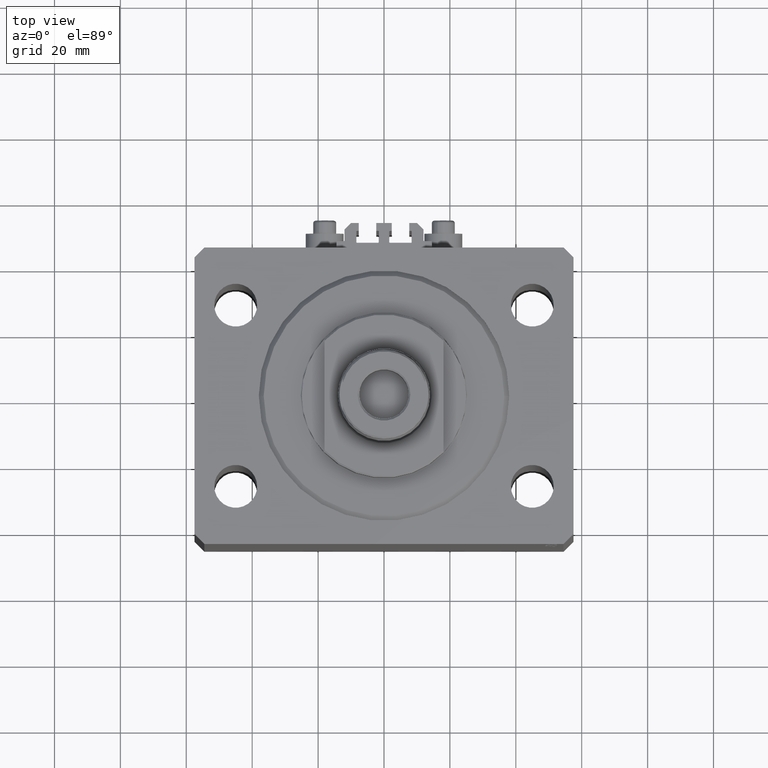
[diagram: clean part render]
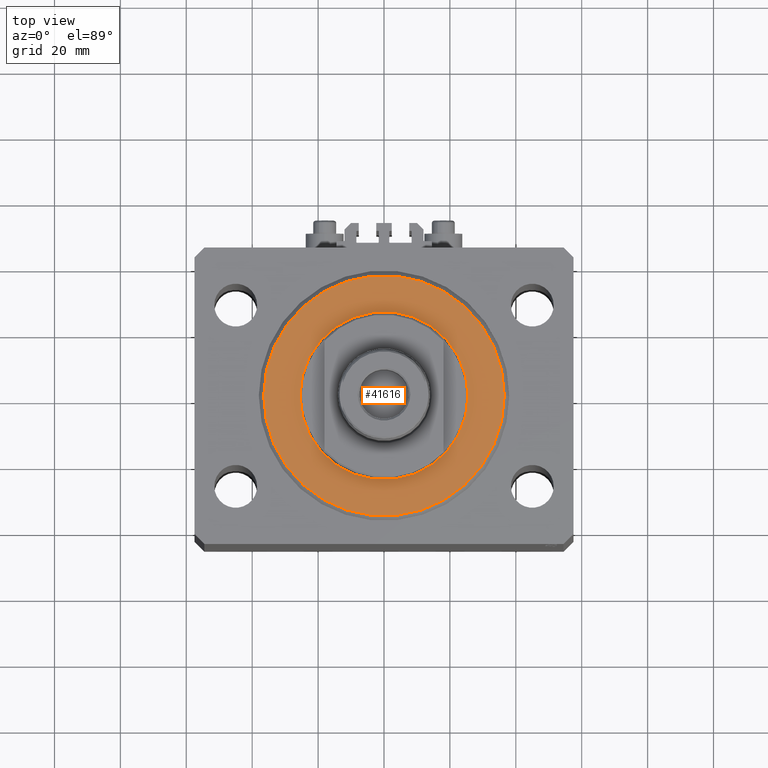
[diagram: same view with one face highlighted and labeled with its STEP entity id]
A machine part, top view. The second image highlights one B-rep face of the part: STEP entity #41616.
In plain terms, the highlighted planar face has unit normal (0, 0, -1).
Its self-contained STEP definition (entity closure, byte-faithful):
#3 = VERTEX_POINT ( 'NONE', #17731 ) ;
#3398 = DIRECTION ( 'NONE',  ( 1.000000000000000000, 0.000000000000000000, -0.000000000000000000 ) ) ;
#4016 = ORIENTED_EDGE ( 'NONE', *, *, #45743, .T. ) ;
#6656 = DIRECTION ( 'NONE',  ( -0.000000000000000000, -0.000000000000000000, -1.000000000000000000 ) ) ;
#6702 = AXIS2_PLACEMENT_3D ( 'NONE', #16840, #6656, #21132 ) ;
#6736 = FACE_OUTER_BOUND ( 'NONE', #16378, .T. ) ;
#7661 = CARTESIAN_POINT ( 'NONE',  ( 25.50000000000000355, 0.000000000000000000, 2.168404344971008868E-16 ) ) ;
#7834 = ORIENTED_EDGE ( 'NONE', *, *, #30363, .T. ) ;
#9511 = CARTESIAN_POINT ( 'NONE',  ( 0.000000000000000000, 0.000000000000000000, 0.000000000000000000 ) ) ;
#10505 = PLANE ( 'NONE',  #37764 ) ;
#14276 = CIRCLE ( 'NONE', #6702, 36.50000000000000000 ) ;
#14782 = FACE_BOUND ( 'NONE', #32364, .T. ) ;
#15073 = CARTESIAN_POINT ( 'NONE',  ( 0.000000000000000000, 0.000000000000000000, 0.000000000000000000 ) ) ;
#16378 = EDGE_LOOP ( 'NONE', ( #4016, #7834 ) ) ;
#16650 = CARTESIAN_POINT ( 'NONE',  ( -25.50000000000000355, 3.122849337825751011E-15, 2.168404344971008868E-16 ) ) ;
#16840 = CARTESIAN_POINT ( 'NONE',  ( 0.000000000000000000, 0.000000000000000000, 0.000000000000000000 ) ) ;
#17350 = DIRECTION ( 'NONE',  ( 0.000000000000000000, 0.000000000000000000, 1.000000000000000000 ) ) ;
#17731 = CARTESIAN_POINT ( 'NONE',  ( -36.50000000000000000, 4.561809326823889791E-15, 0.000000000000000000 ) ) ;
#18515 = ORIENTED_EDGE ( 'NONE', *, *, #41831, .T. ) ;
#21132 = DIRECTION ( 'NONE',  ( 1.000000000000000000, 0.000000000000000000, 0.000000000000000000 ) ) ;
#24964 = VERTEX_POINT ( 'NONE', #32077 ) ;
#26877 = CIRCLE ( 'NONE', #46461, 25.50000000000000355 ) ;
#27543 = DIRECTION ( 'NONE',  ( 1.000000000000000000, 0.000000000000000000, 0.000000000000000000 ) ) ;
#28083 = VERTEX_POINT ( 'NONE', #7661 ) ;
#28855 = EDGE_CURVE ( 'NONE', #28083, #39050, #26877, .T. ) ;
#29476 = DIRECTION ( 'NONE',  ( 0.000000000000000000, 0.000000000000000000, 1.000000000000000000 ) ) ;
#29532 = DIRECTION ( 'NONE',  ( 0.000000000000000000, 0.000000000000000000, 1.000000000000000000 ) ) ;
#30363 = EDGE_CURVE ( 'NONE', #3, #24964, #35123, .T. ) ;
#30920 = AXIS2_PLACEMENT_3D ( 'NONE', #9511, #17350, #27543 ) ;
#32077 = CARTESIAN_POINT ( 'NONE',  ( 36.50000000000000000, 0.000000000000000000, 0.000000000000000000 ) ) ;
#32364 = EDGE_LOOP ( 'NONE', ( #40305, #18515 ) ) ;
#32788 = CARTESIAN_POINT ( 'NONE',  ( 0.000000000000000000, 0.000000000000000000, 0.000000000000000000 ) ) ;
#32861 = AXIS2_PLACEMENT_3D ( 'NONE', #38458, #35608, #41787 ) ;
#35123 = CIRCLE ( 'NONE', #32861, 36.50000000000000000 ) ;
#35608 = DIRECTION ( 'NONE',  ( -0.000000000000000000, -0.000000000000000000, -1.000000000000000000 ) ) ;
#37764 = AXIS2_PLACEMENT_3D ( 'NONE', #32788, #29476, #3398 ) ;
#38458 = CARTESIAN_POINT ( 'NONE',  ( 0.000000000000000000, 0.000000000000000000, 0.000000000000000000 ) ) ;
#39050 = VERTEX_POINT ( 'NONE', #16650 ) ;
#40305 = ORIENTED_EDGE ( 'NONE', *, *, #28855, .T. ) ;
#41616 = ADVANCED_FACE ( 'NONE', ( #14782, #6736 ), #10505, .F. ) ;
#41787 = DIRECTION ( 'NONE',  ( 1.000000000000000000, 0.000000000000000000, 0.000000000000000000 ) ) ;
#41831 = EDGE_CURVE ( 'NONE', #39050, #28083, #46837, .T. ) ;
#43991 = DIRECTION ( 'NONE',  ( 1.000000000000000000, 0.000000000000000000, 0.000000000000000000 ) ) ;
#45743 = EDGE_CURVE ( 'NONE', #24964, #3, #14276, .T. ) ;
#46461 = AXIS2_PLACEMENT_3D ( 'NONE', #15073, #29532, #43991 ) ;
#46837 = CIRCLE ( 'NONE', #30920, 25.50000000000000355 ) ;